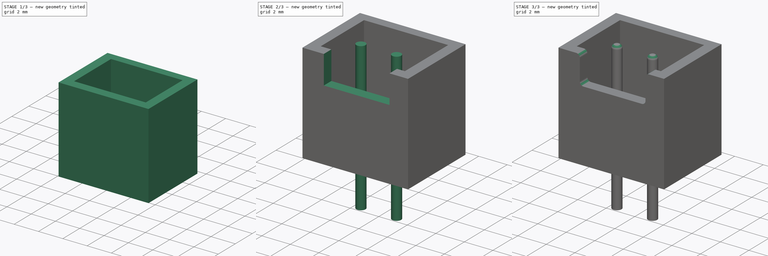
[diagram: build sequence overview — one tinted view per stage of 3, left to right]
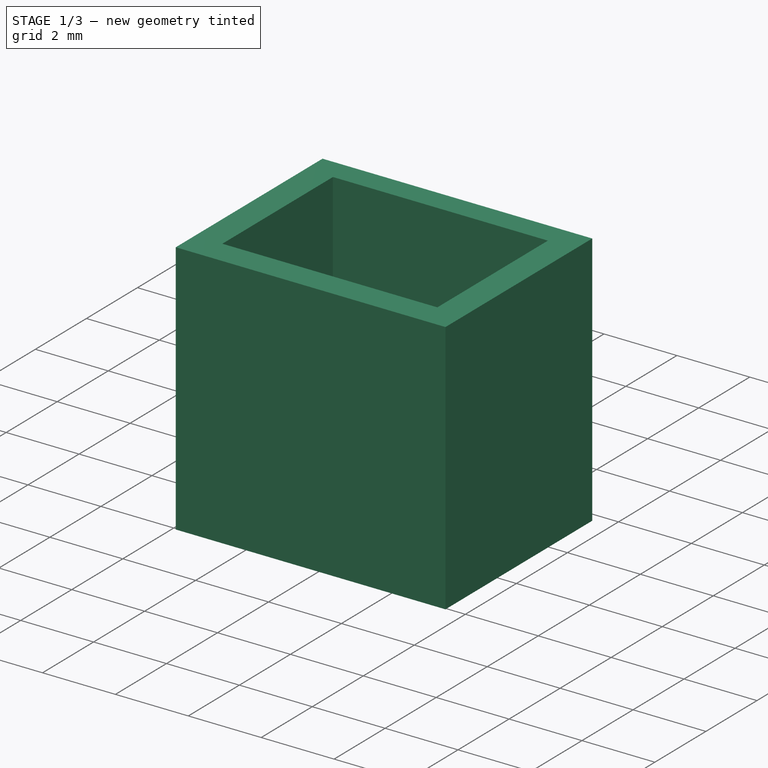
[diagram: stage 1 of 3 — iso view after this stage's code; geometry added in this stage tinted green]
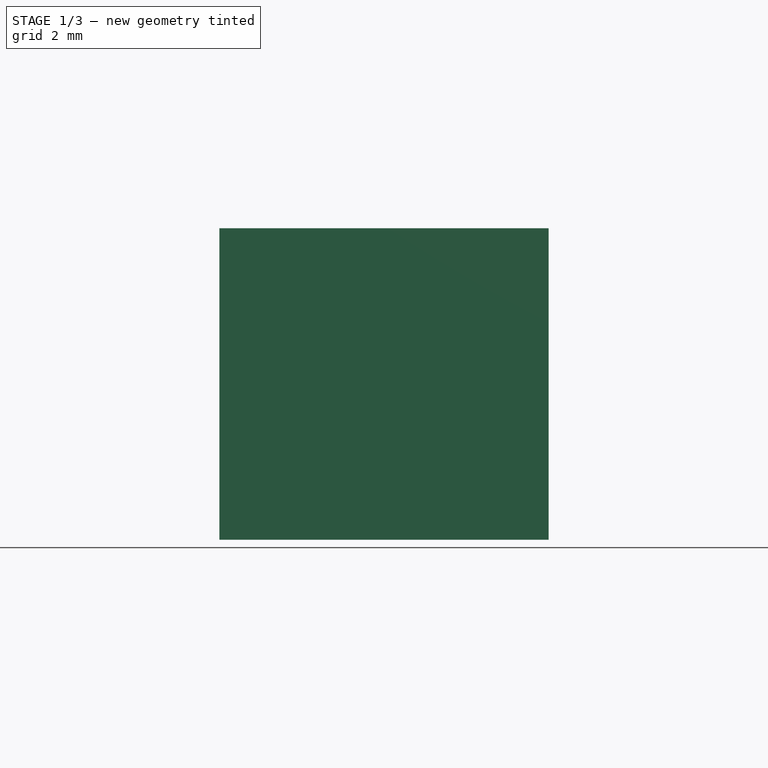
[diagram: stage 1 of 3 — front view after this stage's code; geometry added in this stage tinted green]
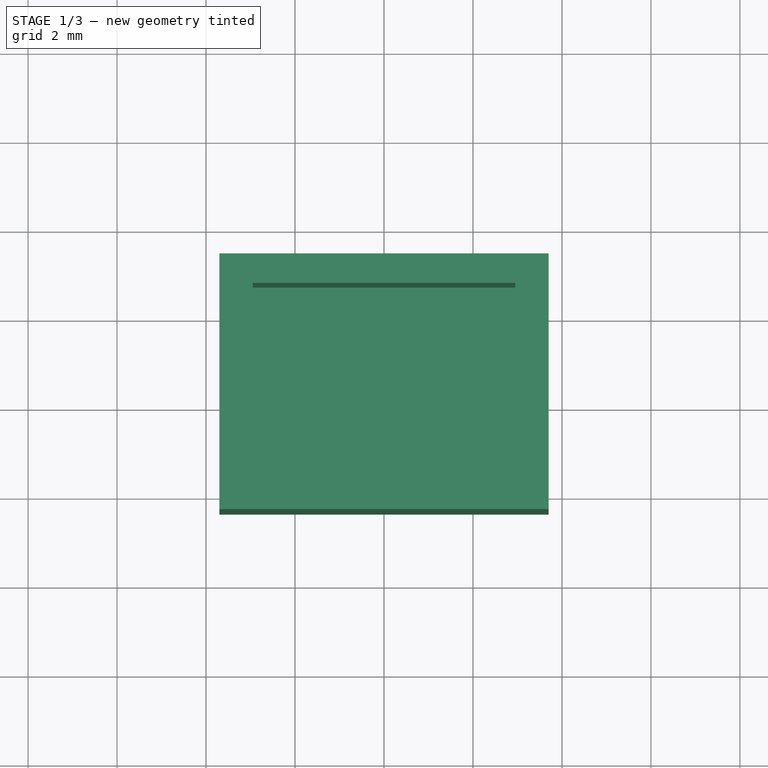
[diagram: stage 1 of 3 — top view after this stage's code; geometry added in this stage tinted green]
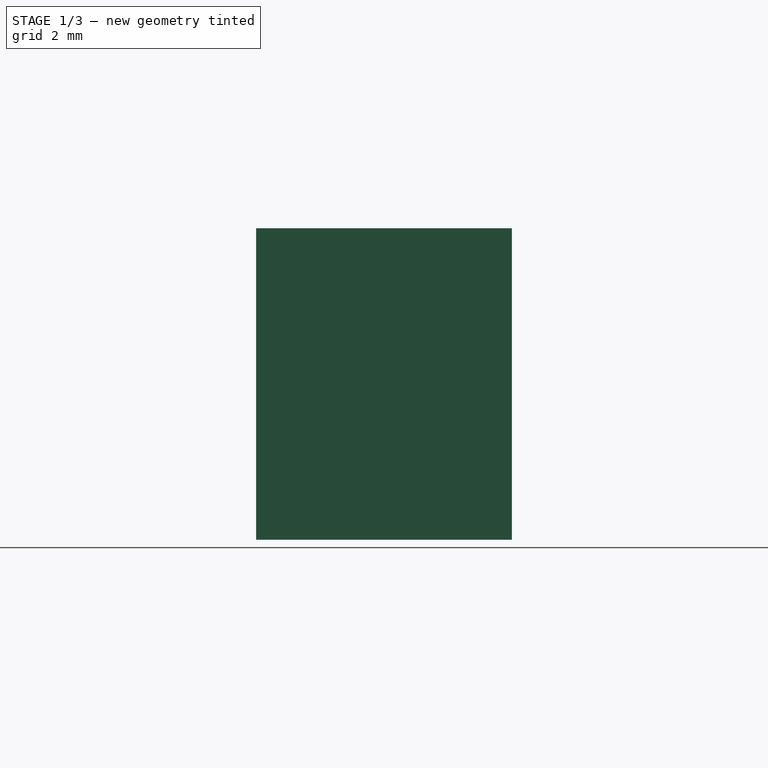
[diagram: stage 1 of 3 — right view after this stage's code; geometry added in this stage tinted green]
FCSTD DOCUMENT  (FreeCAD 0.21R33771 (Git))
Label: B2B-XH-A-GU_MODEL
License: All rights reserved
LicenseURL: http://en.wikipedia.org/wiki/All_rights_reserved
objects: Sketcher::SketchObject×4, PartDesign::Pad×2, PartDesign::Pocket×2, PartDesign::Fillet×2, PartDesign::Body×1
note: 17 computed .brp shape members not serialized (recipe doc carries the construction recipe); baked Part::Feature solids carry a one-line shape summary decoded from their .brp

FEATURE [Sketcher::SketchObject] Sketch
  FullyConstrained = true
  MapMode = 5
  Support = -> [XY_Plane]
  sketch-geometry (4):
    g0: LineSegment StartX=-3.7 StartY=3.4 StartZ=0 EndX=3.7 EndY=3.4 EndZ=0
    g1: LineSegment StartX=3.7 StartY=3.4 StartZ=0 EndX=3.7 EndY=-2.35 EndZ=0
    g2: LineSegment StartX=3.7 StartY=-2.35 StartZ=0 EndX=-3.7 EndY=-2.35 EndZ=0
    g3: LineSegment StartX=-3.7 StartY=-2.35 StartZ=0 EndX=-3.7 EndY=3.4 EndZ=0
  constraints (11):
    c: Coincident(g0,g1)
    c: Coincident(g1,g2)
    c: Coincident(g2,g3)
    c: Coincident(g3,g0)
    c: Horizontal(g0)
    c: Vertical(g1)
    c: Vertical(g3)
    c: DistanceX(g2,g2) = 7.4
    c: Symmetric(g2,g1,g-2)
    c: DistanceY(g1,g1) = 5.75
    c: DistanceY(g1,g-1) = 2.35
FEATURE [PartDesign::Pad] Pad  label="Pad_Shell"
  Direction = (0,0,1)
  Length = 7
  Length2 = 10
  Profile = -> Sketch
  ReferenceAxis = -> Sketch [N_Axis]
  Type = 0
FEATURE [Sketcher::SketchObject] Sketch001
  FullyConstrained = false
  MapMode = 5
  Placement = pos=(0,0,7) rot=(0,0,1;0rad)
  Support = -> [Pad]
  sketch-geometry (4):
    g0: LineSegment StartX=-2.9494 StartY=2.73586 StartZ=0 EndX=2.9494 EndY=2.73586 EndZ=0
    g1: LineSegment StartX=2.9494 StartY=2.73586 StartZ=0 EndX=2.9494 EndY=-1.59638 EndZ=0
    g2: LineSegment StartX=2.9494 StartY=-1.59638 StartZ=0 EndX=-2.9494 EndY=-1.59638 EndZ=0
    g3: LineSegment StartX=-2.9494 StartY=-1.59638 StartZ=0 EndX=-2.9494 EndY=2.73586 EndZ=0
  constraints (8):
    c: Coincident(g0,g1)
    c: Coincident(g1,g2)
    c: Coincident(g2,g3)
    c: Coincident(g3,g0)
    c: Horizontal(g0)
    c: Vertical(g1)
    c: Vertical(g3)
    c: Symmetric(g2,g1,g-2)
FEATURE [PartDesign::Pocket] Pocket  label="Pocket_Connector"
  BaseFeature = -> Pad
  Direction = (0,0,-1)
  Length = 6
  Length2 = 5
  Profile = -> Sketch001
  ReferenceAxis = -> Sketch001 [N_Axis]
  Type = 0
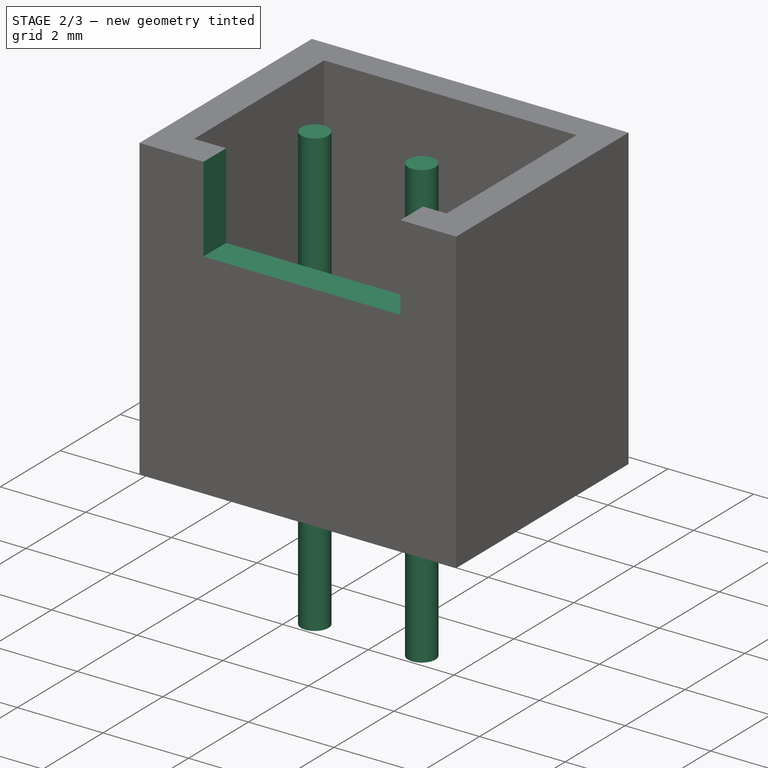
[diagram: stage 2 of 3 — iso view after this stage's code; geometry added in this stage tinted green]
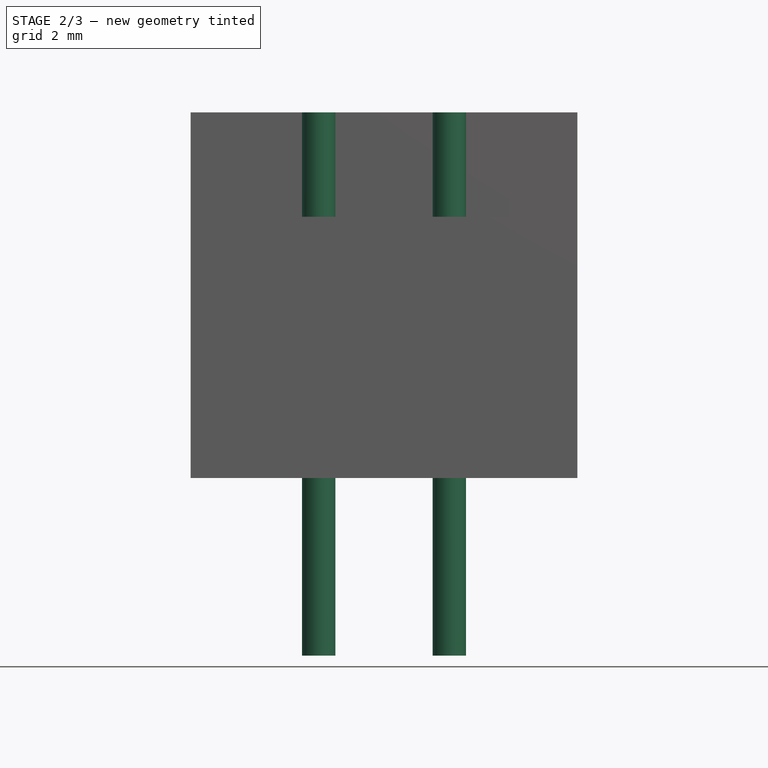
[diagram: stage 2 of 3 — front view after this stage's code; geometry added in this stage tinted green]
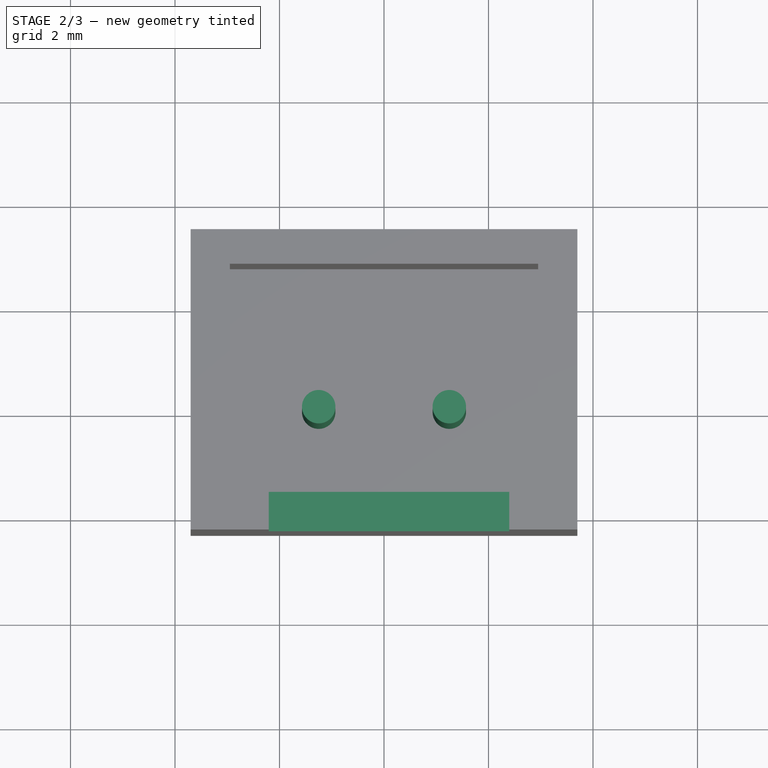
[diagram: stage 2 of 3 — top view after this stage's code; geometry added in this stage tinted green]
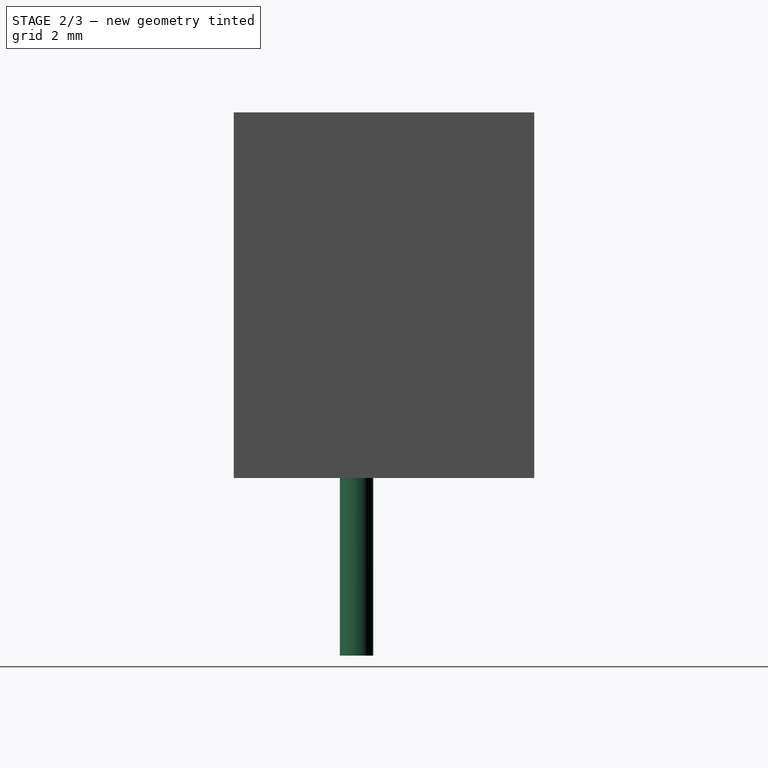
[diagram: stage 2 of 3 — right view after this stage's code; geometry added in this stage tinted green]
FEATURE [Sketcher::SketchObject] Sketch002
  FullyConstrained = false
  MapMode = 5
  Placement = pos=(0,0,7) rot=(0,0,1;0rad)
  Support = -> [Pocket]
  sketch-geometry (12):
    g0: LineSegment StartX=-2.20481 StartY=-1.09177 StartZ=0 EndX=-1.34423 EndY=-1.09177 EndZ=0
    g1: LineSegment StartX=-1.34423 StartY=-1.09177 StartZ=0 EndX=-1.34423 EndY=-2.73811 EndZ=0
    g2: LineSegment StartX=-1.34423 StartY=-2.73811 StartZ=0 EndX=-2.20481 EndY=-2.73811 EndZ=0
    g3: LineSegment StartX=-2.20481 StartY=-2.73811 StartZ=0 EndX=-2.20481 EndY=-1.09177 EndZ=0
    g4: LineSegment StartX=1.53687 StartY=-1.12919 StartZ=0 EndX=2.39745 EndY=-1.12919 EndZ=0
    g5: LineSegment StartX=2.39745 StartY=-1.12919 StartZ=0 EndX=2.39745 EndY=-2.83166 EndZ=0
    g6: LineSegment StartX=2.39745 StartY=-2.83166 StartZ=0 EndX=1.53687 EndY=-2.83166 EndZ=0
    g7: LineSegment StartX=1.53687 StartY=-2.83166 StartZ=0 EndX=1.53687 EndY=-1.12919 EndZ=0
    g8: LineSegment StartX=-2.20481 StartY=-1.09177 StartZ=0 EndX=2.39745 EndY=-1.09177 EndZ=0
    g9: LineSegment StartX=2.39745 StartY=-1.09177 StartZ=0 EndX=2.39745 EndY=-2.83166 EndZ=0
    g10: LineSegment StartX=2.39745 StartY=-2.83166 StartZ=0 EndX=-2.20481 EndY=-2.83166 EndZ=0
    g11: LineSegment StartX=-2.20481 StartY=-2.83166 StartZ=0 EndX=-2.20481 EndY=-1.09177 EndZ=0
  constraints (26):
    c: Coincident(g0,g1)
    c: Coincident(g1,g2)
    c: Coincident(g2,g3)
    c: Coincident(g3,g0)
    c: Horizontal(g0)
    c: Horizontal(g2)
    c: Vertical(g1)
    c: Vertical(g3)
    c: Coincident(g4,g5)
    c: Coincident(g5,g6)
    c: Coincident(g6,g7)
    c: Coincident(g7,g4)
    c: Horizontal(g4)
    c: Horizontal(g6)
    c: Vertical(g5)
    c: Vertical(g7)
    c: Coincident(g8,g9)
    c: Coincident(g9,g10)
    c: Coincident(g10,g11)
    c: Coincident(g11,g8)
    c: Horizontal(g8)
    c: Horizontal(g10)
    c: Vertical(g9)
    c: Vertical(g11)
    c: Coincident(g8,g0)
    c: Coincident(g9,g5)
FEATURE [PartDesign::Pocket] Pocket001  label="Pocket_ConnectorLatch"
  BaseFeature = -> Pocket
  Direction = (0,0,-1)
  Length = 2
  Length2 = 5
  Profile = -> Sketch002
  ReferenceAxis = -> Sketch002 [N_Axis]
  Type = 0
FEATURE [Sketcher::SketchObject] Sketch003
  FullyConstrained = true
  MapMode = 5
  Placement = pos=(0,0,7) rot=(0,0,1;0rad)
  Support = -> [Pocket001]
  sketch-geometry (2):
    g0: Circle CenterX=-1.25 CenterY=0 CenterZ=0 NormalX=0 NormalY=0 NormalZ=1 AngleXU=0 Radius=0.32
    g1: Circle CenterX=1.25 CenterY=0 CenterZ=0 NormalX=0 NormalY=0 NormalZ=1 AngleXU=0 Radius=0.32
  constraints (5):
    c: PointOnObject(g0,g-1)
    c: Symmetric(g0,g1,g-2)
    c: Equal(g0,g1)
    c: Diameter(g0) = 0.64
    c: DistanceX(g0,g1) = 2.5
FEATURE [PartDesign::Pad] Pad001  label="Pad001_Pins"
  BaseFeature = -> Pocket001
  Direction = (0,0,1)
  Length = 10.4
  Length2 = 10
  Profile = -> Sketch003
  ReferenceAxis = -> Sketch003 [N_Axis]
  Reversed = true
  Type = 0
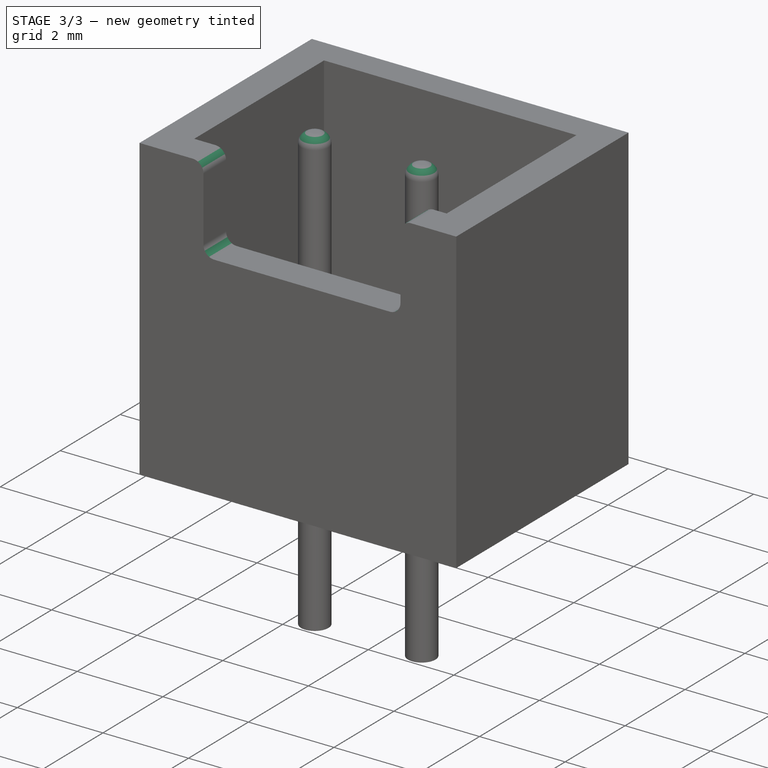
[diagram: stage 3 of 3 — iso view after this stage's code; geometry added in this stage tinted green]
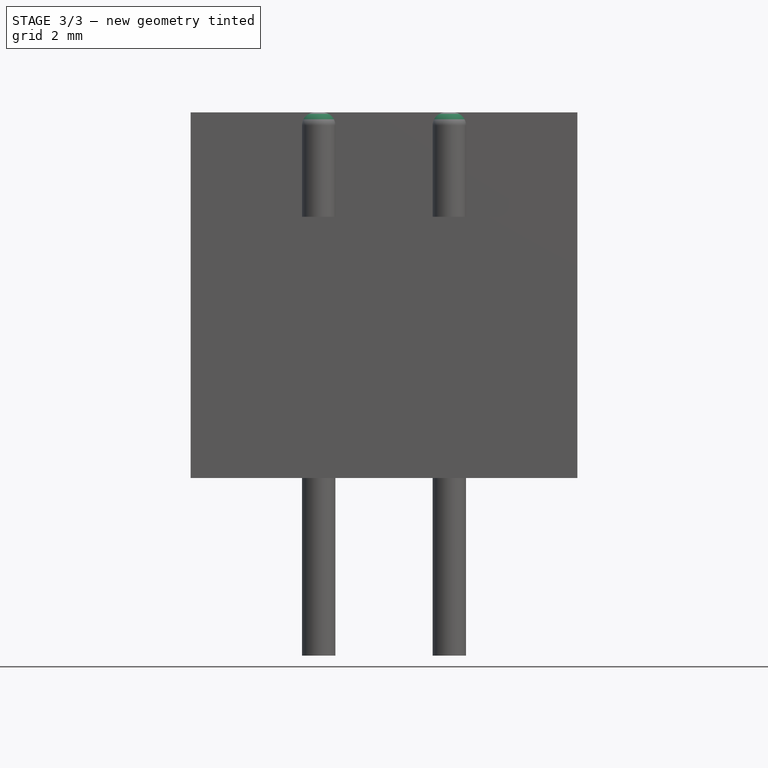
[diagram: stage 3 of 3 — front view after this stage's code; geometry added in this stage tinted green]
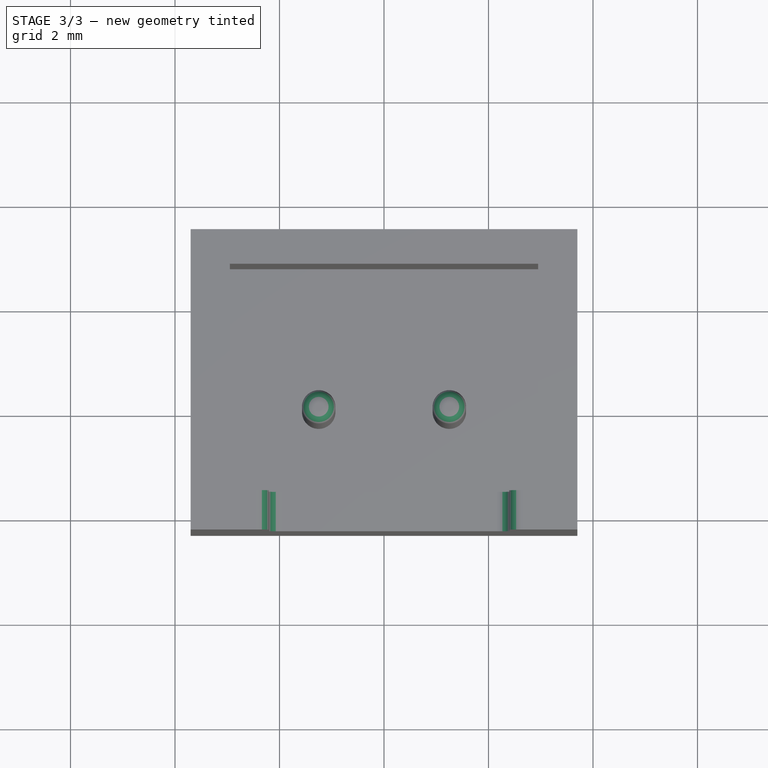
[diagram: stage 3 of 3 — top view after this stage's code; geometry added in this stage tinted green]
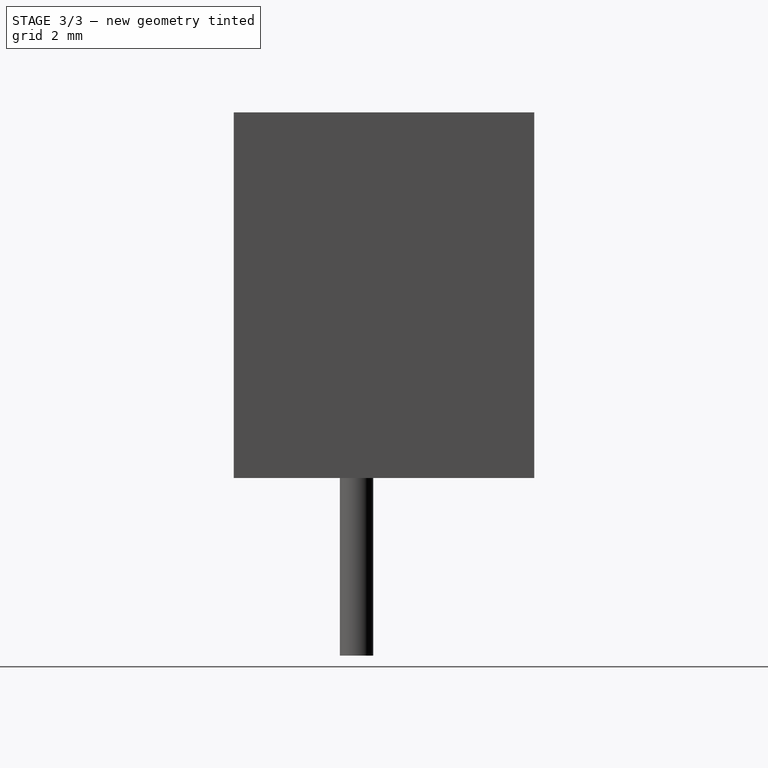
[diagram: stage 3 of 3 — right view after this stage's code; geometry added in this stage tinted green]
FEATURE [PartDesign::Fillet] Fillet  label="Fillet_Latch"
  Base = -> Pad001 [Edge21,Edge15,Edge42,Edge30]
  BaseFeature = -> Pad001
  Radius = 0.25
  SupportTransform = false
  UseAllEdges = false
FEATURE [PartDesign::Fillet] Fillet001  label="Fillet001_PInTops"
  Base = -> Fillet [Edge59,Edge57]
  BaseFeature = -> Fillet
  Radius = 0.25
  SupportTransform = false
  UseAllEdges = false
FEATURE [PartDesign::Body] Body
  Group = -> [Sketch,Pad,Sketch001,Pocket,Sketch002,Pocket001,Sketch003,Pad001,Fillet,Fillet001]
  Origin = -> Origin
  Tip = -> Fillet001
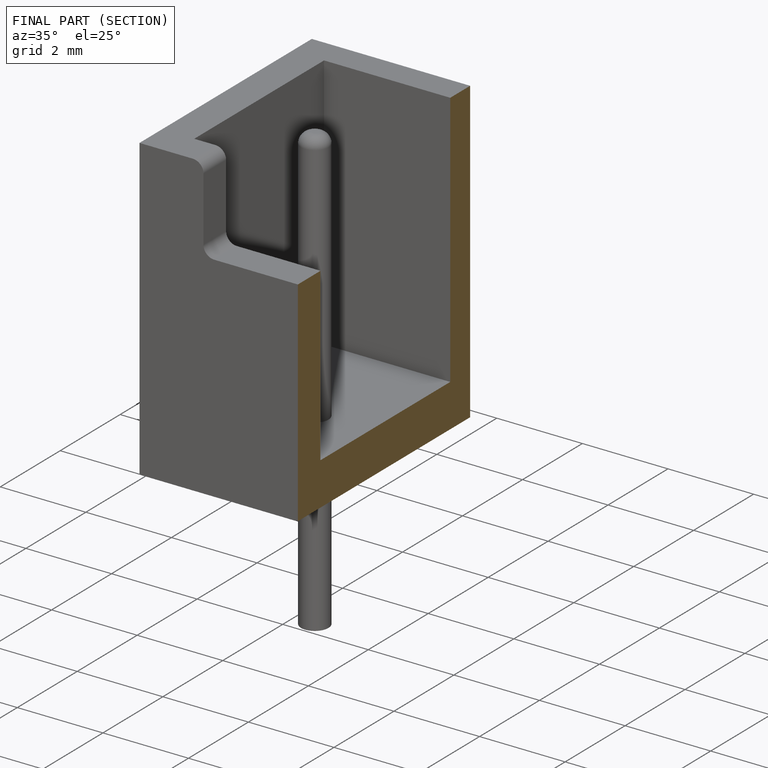
[diagram: finished part — half-section view (interior)]
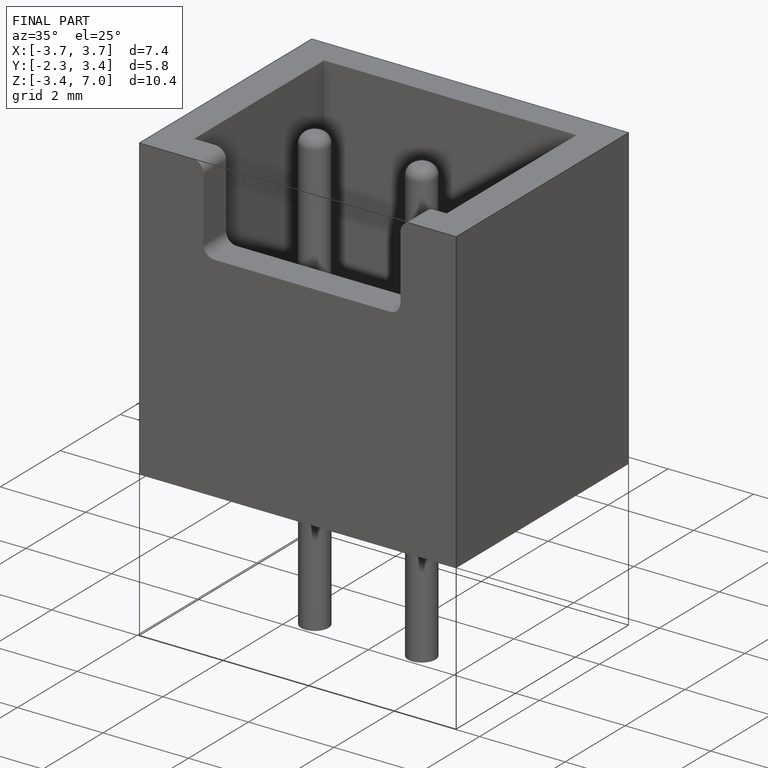
[diagram: finished part — iso view with bounding-box wireframe]
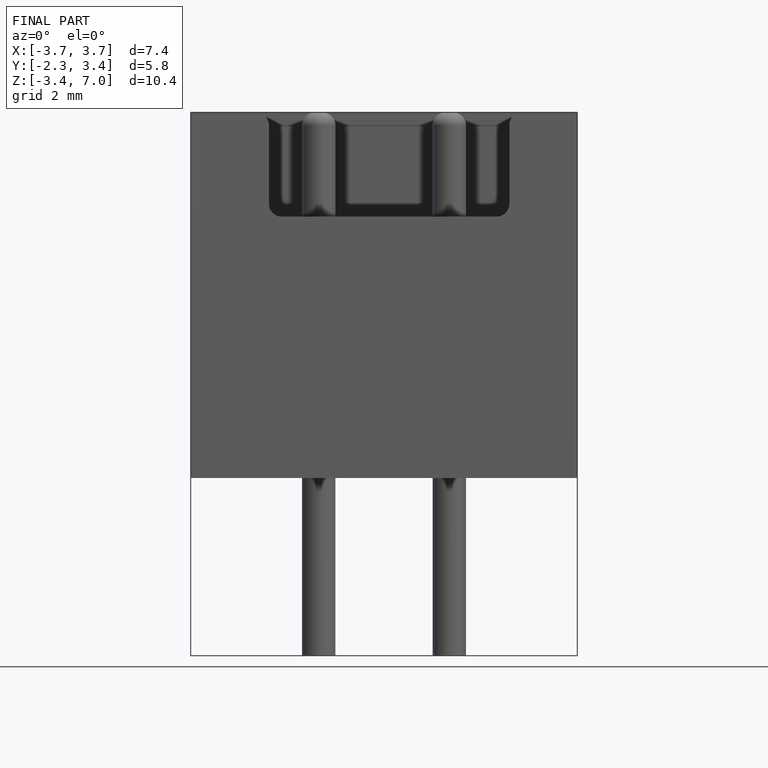
[diagram: finished part — front view with bounding-box wireframe]
